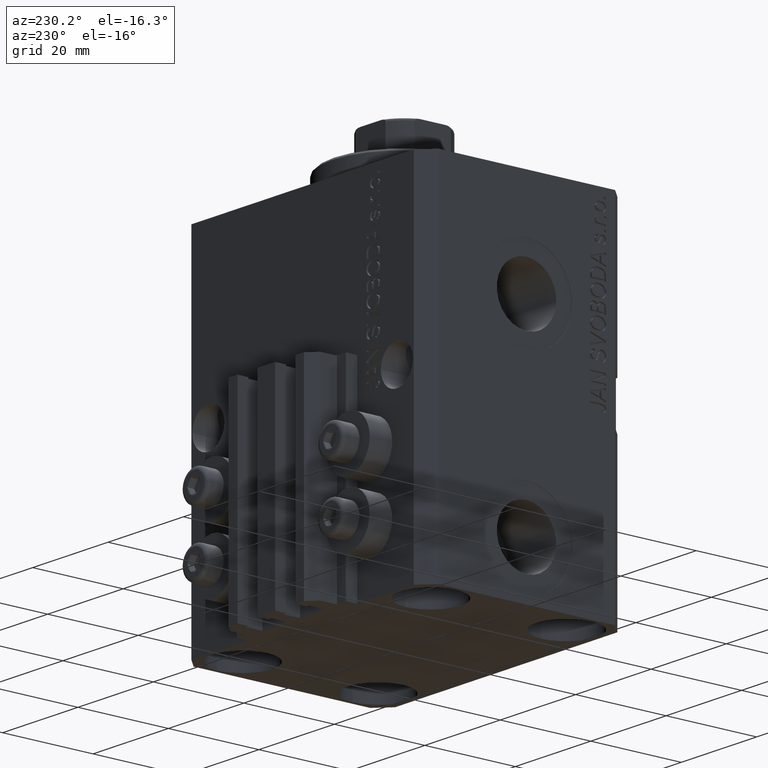
[diagram: clean part render]
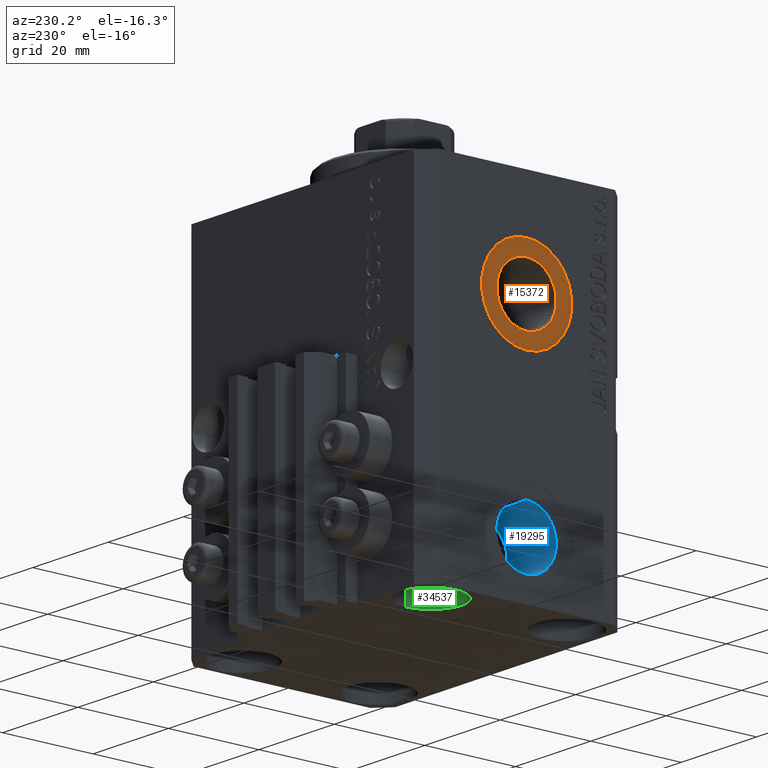
[diagram: same view with three faces highlighted in distinct colors, each labeled with its STEP entity id]
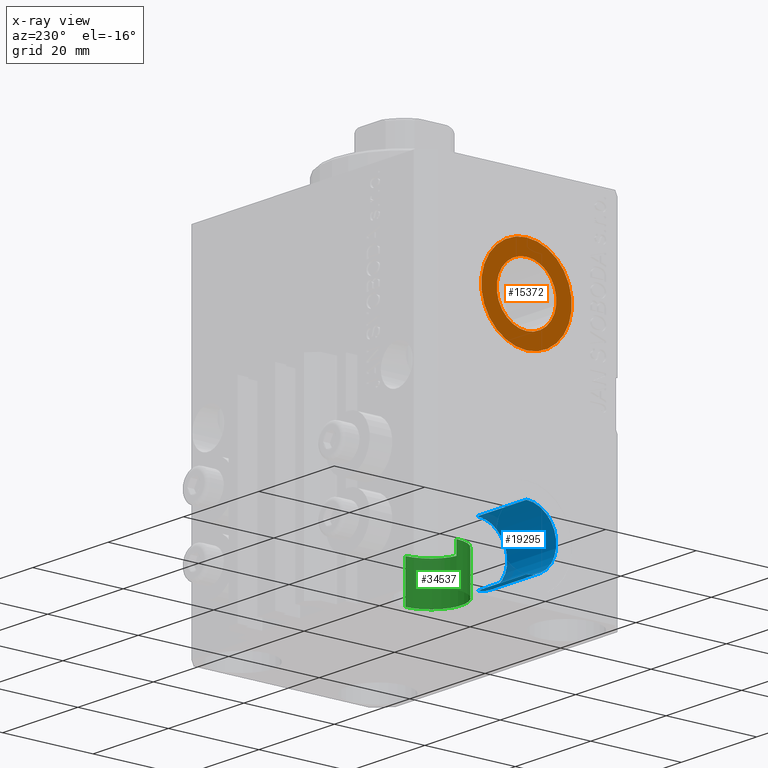
[diagram: x-ray of the same camera — body ghosted, the three highlighted faces saturated]
A machine part, auxiliary view with three faces highlighted in distinct colors.
The next image is the same camera in x-ray (body ghosted, the three faces saturated) — at least one of them is partly hidden behind the body in this view.
Their STEP definitions:

[orange] entity #15372 — the highlighted planar face has unit normal (-1, 0, 0).
#128 = FACE_OUTER_BOUND ( 'NONE', #11921, .T. ) ;
#4111 = DIRECTION ( 'NONE',  ( -1.000000000000000000, 0.000000000000000000, 0.000000000000000000 ) ) ;
#5104 = VERTEX_POINT ( 'NONE', #18273 ) ;
#7515 = CIRCLE ( 'NONE', #19699, 6.579999999999999183 ) ;
#9989 = DIRECTION ( 'NONE',  ( 0.000000000000000000, 0.000000000000000000, 1.000000000000000000 ) ) ;
#10280 = EDGE_LOOP ( 'NONE', ( #20967, #25101 ) ) ;
#10287 = CIRCLE ( 'NONE', #34676, 10.00000000000000000 ) ;
#10953 = EDGE_CURVE ( 'NONE', #16221, #40307, #22938, .T. ) ;
#11533 = AXIS2_PLACEMENT_3D ( 'NONE', #18874, #44371, #26041 ) ;
#11698 = ORIENTED_EDGE ( 'NONE', *, *, #10953, .T. ) ;
#11921 = EDGE_LOOP ( 'NONE', ( #20800, #11698 ) ) ;
#12227 = CARTESIAN_POINT ( 'NONE',  ( -32.39999999999650271, 0.000000000000000000, -22.00000000000000000 ) ) ;
#13771 = CARTESIAN_POINT ( 'NONE',  ( -32.39999999999650271, 0.000000000000000000, -22.00000000000000000 ) ) ;
#13990 = FACE_BOUND ( 'NONE', #10280, .T. ) ;
#14703 = PLANE ( 'NONE',  #38953 ) ;
#15372 = ADVANCED_FACE ( 'NONE', ( #13990, #128 ), #14703, .T. ) ;
#16221 = VERTEX_POINT ( 'NONE', #45776 ) ;
#18273 = CARTESIAN_POINT ( 'NONE',  ( -32.39999999999650271, 0.000000000000000000, -15.41999999999999993 ) ) ;
#18874 = CARTESIAN_POINT ( 'NONE',  ( -32.39999999999650271, 0.000000000000000000, -22.00000000000000000 ) ) ;
#18992 = DIRECTION ( 'NONE',  ( -1.000000000000000000, 0.000000000000000000, 0.000000000000000000 ) ) ;
#19699 = AXIS2_PLACEMENT_3D ( 'NONE', #26554, #4111, #41085 ) ;
#20693 = DIRECTION ( 'NONE',  ( 0.000000000000000000, 0.000000000000000000, 1.000000000000000000 ) ) ;
#20788 = CARTESIAN_POINT ( 'NONE',  ( -32.39999999999650271, 8.058175938389579572E-16, -28.57999999999999829 ) ) ;
#20800 = ORIENTED_EDGE ( 'NONE', *, *, #31499, .T. ) ;
#20967 = ORIENTED_EDGE ( 'NONE', *, *, #23013, .F. ) ;
#21216 = VERTEX_POINT ( 'NONE', #20788 ) ;
#22938 = CIRCLE ( 'NONE', #11533, 10.00000000000000000 ) ;
#23013 = EDGE_CURVE ( 'NONE', #5104, #21216, #35387, .T. ) ;
#24276 = DIRECTION ( 'NONE',  ( -1.000000000000000000, 0.000000000000000000, 0.000000000000000000 ) ) ;
#25101 = ORIENTED_EDGE ( 'NONE', *, *, #44099, .F. ) ;
#25445 = CARTESIAN_POINT ( 'NONE',  ( -32.39999999999650271, 0.000000000000000000, -11.99999999999999822 ) ) ;
#26041 = DIRECTION ( 'NONE',  ( 0.000000000000000000, 0.000000000000000000, 1.000000000000000000 ) ) ;
#26554 = CARTESIAN_POINT ( 'NONE',  ( -32.39999999999650271, 0.000000000000000000, -22.00000000000000000 ) ) ;
#31499 = EDGE_CURVE ( 'NONE', #40307, #16221, #10287, .T. ) ;
#32365 = AXIS2_PLACEMENT_3D ( 'NONE', #12227, #42658, #9989 ) ;
#34676 = AXIS2_PLACEMENT_3D ( 'NONE', #13771, #24276, #20693 ) ;
#35387 = CIRCLE ( 'NONE', #32365, 6.579999999999999183 ) ;
#37115 = DIRECTION ( 'NONE',  ( 0.000000000000000000, 0.000000000000000000, 1.000000000000000000 ) ) ;
#38953 = AXIS2_PLACEMENT_3D ( 'NONE', #43079, #18992, #37115 ) ;
#40307 = VERTEX_POINT ( 'NONE', #25445 ) ;
#41085 = DIRECTION ( 'NONE',  ( 0.000000000000000000, 0.000000000000000000, 1.000000000000000000 ) ) ;
#42658 = DIRECTION ( 'NONE',  ( -1.000000000000000000, 0.000000000000000000, 0.000000000000000000 ) ) ;
#43079 = CARTESIAN_POINT ( 'NONE',  ( -32.39999999999650271, 0.000000000000000000, -22.00000000000000000 ) ) ;
#44099 = EDGE_CURVE ( 'NONE', #21216, #5104, #7515, .T. ) ;
#44371 = DIRECTION ( 'NONE',  ( -1.000000000000000000, 0.000000000000000000, 0.000000000000000000 ) ) ;
#45776 = CARTESIAN_POINT ( 'NONE',  ( -32.39999999999650271, 1.224646799147353059E-15, -32.00000000000000000 ) ) ;

[blue] entity #19295 — the highlighted cylindrical surface (partial cylindrical patch) has radius 6.58 mm, axis along (-1, -0, -0).
#152 = EDGE_CURVE ( 'NONE', #29119, #17334, #41000, .T. ) ;
#1127 = CARTESIAN_POINT ( 'NONE',  ( -32.39999999999650271, -6.938893903907228378E-15, -65.00000000000000000 ) ) ;
#2424 = DIRECTION ( 'NONE',  ( 0.000000000000000000, 0.000000000000000000, 1.000000000000000000 ) ) ;
#2467 = VERTEX_POINT ( 'NONE', #35889 ) ;
#4737 = CARTESIAN_POINT ( 'NONE',  ( -32.39999999999650271, -6.133076310068269336E-15, -71.57999999999999829 ) ) ;
#5847 = CARTESIAN_POINT ( 'NONE',  ( -32.39999999999650271, -6.938893903907228378E-15, -58.42000000000000171 ) ) ;
#8453 = LINE ( 'NONE', #24595, #19324 ) ;
#8543 = DIRECTION ( 'NONE',  ( 0.000000000000000000, 0.000000000000000000, 1.000000000000000000 ) ) ;
#9359 = AXIS2_PLACEMENT_3D ( 'NONE', #24889, #17727, #39419 ) ;
#9608 = DIRECTION ( 'NONE',  ( -1.000000000000000000, 0.000000000000000000, 0.000000000000000000 ) ) ;
#10331 = CYLINDRICAL_SURFACE ( 'NONE', #9359, 6.580000000000002736 ) ;
#11368 = CARTESIAN_POINT ( 'NONE',  ( -19.39999999999650271, -6.133076310068269336E-15, -71.57999999999999829 ) ) ;
#15701 = DIRECTION ( 'NONE',  ( -1.000000000000000000, 0.000000000000000000, 0.000000000000000000 ) ) ;
#15843 = DIRECTION ( 'NONE',  ( -1.000000000000000000, -0.000000000000000000, -0.000000000000000000 ) ) ;
#17334 = VERTEX_POINT ( 'NONE', #5847 ) ;
#17727 = DIRECTION ( 'NONE',  ( -1.000000000000000000, -0.000000000000000000, -0.000000000000000000 ) ) ;
#19295 = ADVANCED_FACE ( 'NONE', ( #20604 ), #10331, .F. ) ;
#19324 = VECTOR ( 'NONE', #15843, 1000.000000000000000 ) ;
#20604 = FACE_OUTER_BOUND ( 'NONE', #22769, .T. ) ;
#21853 = LINE ( 'NONE', #11368, #41780 ) ;
#22769 = EDGE_LOOP ( 'NONE', ( #26367, #26963, #34440, #35594 ) ) ;
#24595 = CARTESIAN_POINT ( 'NONE',  ( -19.39999999999650271, -6.938893903907228378E-15, -58.42000000000000171 ) ) ;
#24889 = CARTESIAN_POINT ( 'NONE',  ( -19.39999999999650271, -6.938893903907228378E-15, -65.00000000000000000 ) ) ;
#26367 = ORIENTED_EDGE ( 'NONE', *, *, #34374, .F. ) ;
#26963 = ORIENTED_EDGE ( 'NONE', *, *, #43625, .T. ) ;
#27851 = CARTESIAN_POINT ( 'NONE',  ( -19.39999999999650271, -6.938893903907228378E-15, -58.42000000000000171 ) ) ;
#28693 = CARTESIAN_POINT ( 'NONE',  ( -19.39999999999650271, -6.938893903907228378E-15, -65.00000000000000000 ) ) ;
#28957 = EDGE_CURVE ( 'NONE', #43467, #17334, #8453, .T. ) ;
#29119 = VERTEX_POINT ( 'NONE', #4737 ) ;
#31589 = CIRCLE ( 'NONE', #36910, 6.580000000000002736 ) ;
#34374 = EDGE_CURVE ( 'NONE', #2467, #43467, #31589, .T. ) ;
#34440 = ORIENTED_EDGE ( 'NONE', *, *, #152, .T. ) ;
#34918 = AXIS2_PLACEMENT_3D ( 'NONE', #1127, #15701, #8543 ) ;
#35594 = ORIENTED_EDGE ( 'NONE', *, *, #28957, .F. ) ;
#35889 = CARTESIAN_POINT ( 'NONE',  ( -19.39999999999650271, -6.133076310068269336E-15, -71.57999999999999829 ) ) ;
#36405 = DIRECTION ( 'NONE',  ( -1.000000000000000000, -0.000000000000000000, -0.000000000000000000 ) ) ;
#36910 = AXIS2_PLACEMENT_3D ( 'NONE', #28693, #9608, #2424 ) ;
#39419 = DIRECTION ( 'NONE',  ( 0.000000000000000000, 0.000000000000000000, 1.000000000000000000 ) ) ;
#41000 = CIRCLE ( 'NONE', #34918, 6.580000000000002736 ) ;
#41780 = VECTOR ( 'NONE', #36405, 1000.000000000000000 ) ;
#43467 = VERTEX_POINT ( 'NONE', #27851 ) ;
#43625 = EDGE_CURVE ( 'NONE', #2467, #29119, #21853, .T. ) ;

[green] entity #34537 — the highlighted cylindrical surface (partial cylindrical patch) has radius 6.75 mm, axis along (-0, -0, -1).
#1369 = AXIS2_PLACEMENT_3D ( 'NONE', #14690, #11362, #39725 ) ;
#2016 = CARTESIAN_POINT ( 'NONE',  ( -25.00000000000000355, 15.00000000000000000, -68.00000000000000000 ) ) ;
#4921 = CIRCLE ( 'NONE', #14859, 6.750000000022533087 ) ;
#5262 = CYLINDRICAL_SURFACE ( 'NONE', #33119, 6.750000000022533087 ) ;
#5447 = CARTESIAN_POINT ( 'NONE',  ( -18.24999999997747224, 15.00000000000000000, -77.00000000000000000 ) ) ;
#5607 = DIRECTION ( 'NONE',  ( 1.000000000000000000, 0.000000000000000000, 0.000000000000000000 ) ) ;
#9085 = DIRECTION ( 'NONE',  ( -0.000000000000000000, -0.000000000000000000, -1.000000000000000000 ) ) ;
#10005 = CARTESIAN_POINT ( 'NONE',  ( -18.24999999997747224, 15.00000000000000000, -68.00000000000000000 ) ) ;
#10974 = VECTOR ( 'NONE', #41634, 1000.000000000000000 ) ;
#11248 = LINE ( 'NONE', #33893, #25066 ) ;
#11362 = DIRECTION ( 'NONE',  ( -0.000000000000000000, -0.000000000000000000, 1.000000000000000000 ) ) ;
#14690 = CARTESIAN_POINT ( 'NONE',  ( -25.00000000000000355, 15.00000000000000000, -77.00000000000000000 ) ) ;
#14859 = AXIS2_PLACEMENT_3D ( 'NONE', #2016, #36320, #5607 ) ;
#20069 = FACE_OUTER_BOUND ( 'NONE', #36850, .T. ) ;
#22214 = DIRECTION ( 'NONE',  ( -0.000000000000000000, -0.000000000000000000, -1.000000000000000000 ) ) ;
#25066 = VECTOR ( 'NONE', #22214, 1000.000000000000000 ) ;
#25390 = CARTESIAN_POINT ( 'NONE',  ( -31.75000000002253842, 15.00000000000000000, -77.00000000000000000 ) ) ;
#25659 = ORIENTED_EDGE ( 'NONE', *, *, #31703, .T. ) ;
#26144 = ORIENTED_EDGE ( 'NONE', *, *, #44417, .F. ) ;
#27104 = LINE ( 'NONE', #31154, #10974 ) ;
#29779 = CARTESIAN_POINT ( 'NONE',  ( -31.75000000002253842, 15.00000000000000000, -68.00000000000000000 ) ) ;
#30107 = DIRECTION ( 'NONE',  ( -1.000000000000000000, 0.000000000000000000, 0.000000000000000000 ) ) ;
#30343 = CARTESIAN_POINT ( 'NONE',  ( -25.00000000000000355, 15.00000000000000000, -68.00000000000000000 ) ) ;
#31154 = CARTESIAN_POINT ( 'NONE',  ( -18.24999999997747224, 15.00000000000000000, -68.00000000000000000 ) ) ;
#31703 = EDGE_CURVE ( 'NONE', #42516, #45424, #4921, .T. ) ;
#33104 = EDGE_CURVE ( 'NONE', #45424, #41147, #27104, .T. ) ;
#33119 = AXIS2_PLACEMENT_3D ( 'NONE', #30343, #9085, #30107 ) ;
#33893 = CARTESIAN_POINT ( 'NONE',  ( -31.75000000002253842, 15.00000000000000000, -68.00000000000000000 ) ) ;
#34537 = ADVANCED_FACE ( 'NONE', ( #20069 ), #5262, .F. ) ;
#35698 = ORIENTED_EDGE ( 'NONE', *, *, #42741, .F. ) ;
#36320 = DIRECTION ( 'NONE',  ( -0.000000000000000000, -0.000000000000000000, 1.000000000000000000 ) ) ;
#36850 = EDGE_LOOP ( 'NONE', ( #25659, #38942, #35698, #26144 ) ) ;
#38942 = ORIENTED_EDGE ( 'NONE', *, *, #33104, .T. ) ;
#39725 = DIRECTION ( 'NONE',  ( 1.000000000000000000, 0.000000000000000000, 0.000000000000000000 ) ) ;
#40710 = VERTEX_POINT ( 'NONE', #25390 ) ;
#41147 = VERTEX_POINT ( 'NONE', #5447 ) ;
#41634 = DIRECTION ( 'NONE',  ( -0.000000000000000000, -0.000000000000000000, -1.000000000000000000 ) ) ;
#42516 = VERTEX_POINT ( 'NONE', #29779 ) ;
#42741 = EDGE_CURVE ( 'NONE', #40710, #41147, #43259, .T. ) ;
#43259 = CIRCLE ( 'NONE', #1369, 6.750000000022533087 ) ;
#44417 = EDGE_CURVE ( 'NONE', #42516, #40710, #11248, .T. ) ;
#45424 = VERTEX_POINT ( 'NONE', #10005 ) ;